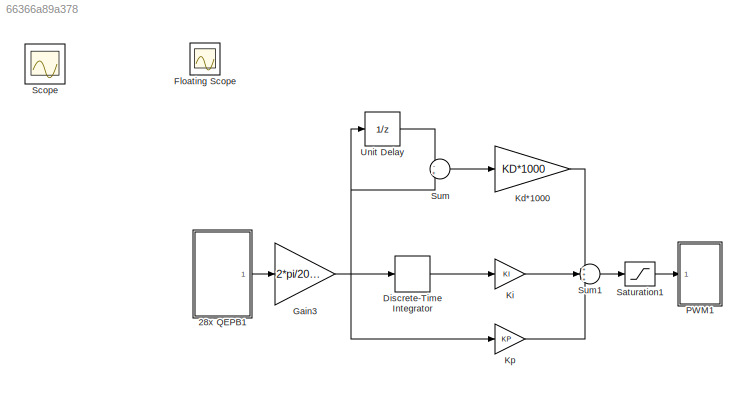
MODEL slx_66366a89a378
KIND model
CONFIG AbsTol = auto
CONFIG EnableMultiTasking = on
CONFIG FixedStep = 0.001
CONFIG MaxStep = auto
CONFIG MinStep = auto
CONFIG PreLoadFcn = RIP_LQR
CONFIG RelTol = 1e-3
CONFIG SampleTimeConstraint = Unconstrained
CONFIG Solver = FixedStepDiscrete
CONFIG SolverName = FixedStepDiscrete
CONFIG StartTime = 0
CONFIG StopTime = inf
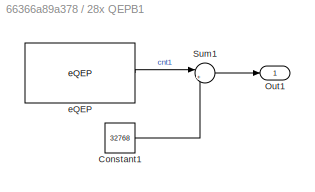
BLOCK [SubSystem] 28x QEPB1
  Ports = [0, 1]
  RequestExecContextInheritance = off
BLOCK [Constant] 28x QEPB1/Constant1
  Value = 32768
BLOCK [Outport] 28x QEPB1/Out1
BLOCK [Sum] 28x QEPB1/Sum1
  Inputs = |+-
  NameLocation = top
  Ports = [2, 1]
BLOCK [Reference] 28x QEPB1/eQEP  REF=c280xlib/eQEP
  Ports = [0, 1]
  SourceBlock = c280xlib/eQEP
  SourceProductBaseCode = TIC2000
  SourceType = C28x eQEP
BLOCK [DiscreteIntegrator] Discrete-Time Integrator
  ICPrevOutput = DiscIntNeverNeededParam
  ICPrevScaledInput = DiscIntNeverNeededParam
  Ports = [1, 1]
  SampleTime = 0.001
BLOCK [Scope] Floating Scope
  Floating = off
  IOType = viewer
  NumInputPorts = 1
  Ports = []
  ScopeSpecificationString = C++SS(StrPVP('Location','[376, 294, 700, 533]'),StrPVP('Open','off'),MxPVP('AxesTitles',54,'struct(''axes1'',''%<SignalLabel>'')'),StrPVP('ShowLegends','off'),StrPVP('DataFormat','StructureWithTime'),StrPVP('LimitDataPoints','on'),StrPVP('Decimation','1'),StrPVP('BlockParamSampleInput','off'))
BLOCK [Gain] Gain3
  Gain = 2*pi/2000
  OutDataTypeStr = Inherit: Same as input
  ParamDataTypeStr = Inherit: Same as input
  SaturateOnIntegerOverflow = on
BLOCK [Gain] Kd*1000
  Gain = KD*1000
BLOCK [Gain] Ki
  Gain = KI
BLOCK [Gain] Kp
  Gain = KP
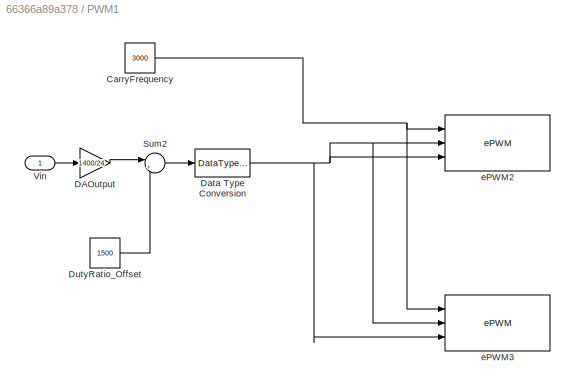
BLOCK [SubSystem] PWM1
  Ports = [1]
  RequestExecContextInheritance = off
BLOCK [Constant] PWM1/CarryFrequency
  OutDataTypeStr = uint16
  Value = 3000
BLOCK [Gain] PWM1/DAOutput
  Gain = 1400/24
  OutDataTypeStr = Inherit: Same as input
  ParamDataTypeStr = Inherit: Same as input
  SaturateOnIntegerOverflow = on
BLOCK [DataTypeConversion] PWM1/Data Type Conversion
BLOCK [Constant] PWM1/DutyRatio_Offset
  Value = 1500
BLOCK [Sum] PWM1/Sum2
  Inputs = |++
  Ports = [2, 1]
  SaturateOnIntegerOverflow = on
BLOCK [Inport] PWM1/Vin
BLOCK [Reference] PWM1/ePWM2  REF=c280xlib/ePWM
  Ports = [3]
  SourceBlock = c280xlib/ePWM
  SourceProductBaseCode = TIC2000
  SourceType = C280x/C2833x ePWM
BLOCK [Reference] PWM1/ePWM3  REF=c280xlib/ePWM
  Ports = [3]
  SourceBlock = c280xlib/ePWM
  SourceProductBaseCode = TIC2000
  SourceType = C280x/C2833x ePWM
BLOCK [Saturate] Saturation1
  LowerLimit = -12
  UpperLimit = 12
BLOCK [Scope] Scope
  Floating = off
  IOType = viewer
  NumInputPorts = 1
  Ports = []
  ScopeSpecificationString = C++SS(StrPVP('Location','[188, 365, 512, 604]'),StrPVP('Open','off'),MxPVP('AxesTitles',54,'struct(''axes1'',''%<SignalLabel>'')'),StrPVP('ShowDataMarkers','off'),StrPVP('ShowLegends','off'),StrPVP('MaxDataPoints','7500'),StrPVP('LimitDataPoints','on'),StrPVP('DataFormat','Array'),StrPVP('Decimation','1'),StrPVP('BlockParamSampleInput','off'))
BLOCK [Sum] Sum
  Inputs = -+
  Ports = [2, 1]
BLOCK [Sum] Sum1
  Inputs = +++
  Ports = [3, 1]
BLOCK [UnitDelay] Unit Delay
  HasFrameUpgradeWarning = on
  SampleTime = 0.001
LINE 28x QEPB1/Constant1:1 -> 28x QEPB1/Sum1:2
LINE 28x QEPB1/Sum1:1 -> 28x QEPB1/Out1:1
LINE 28x QEPB1/eQEP:1 -> 28x QEPB1/Sum1:1
LINE 28x QEPB1:1 -> Gain3:1
LINE Discrete-Time Integrator:1 -> Ki:1
NET Gain3:1 -> Discrete-Time Integrator:1, Kp:1, Sum:2, Unit Delay:1
LINE Kd*1000:1 -> Sum1:1
LINE Ki:1 -> Sum1:2
LINE Kp:1 -> Sum1:3
NET PWM1/CarryFrequency:1 -> PWM1/ePWM2:1, PWM1/ePWM3:1
LINE PWM1/DAOutput:1 -> PWM1/Sum2:1
NET PWM1/Data Type Conversion:1 -> PWM1/ePWM2:2, PWM1/ePWM2:3, PWM1/ePWM3:2, PWM1/ePWM3:3
LINE PWM1/DutyRatio_Offset:1 -> PWM1/Sum2:2
LINE PWM1/Sum2:1 -> PWM1/Data Type Conversion:1
LINE PWM1/Vin:1 -> PWM1/DAOutput:1
LINE Saturation1:1 -> PWM1:1
LINE Sum1:1 -> Saturation1:1
LINE Sum:1 -> Kd*1000:1
LINE Unit Delay:1 -> Sum:1
note: NET lines group one-source signal fan-out (src -> all destinations, sorted); 1:1 wires keep LINE
